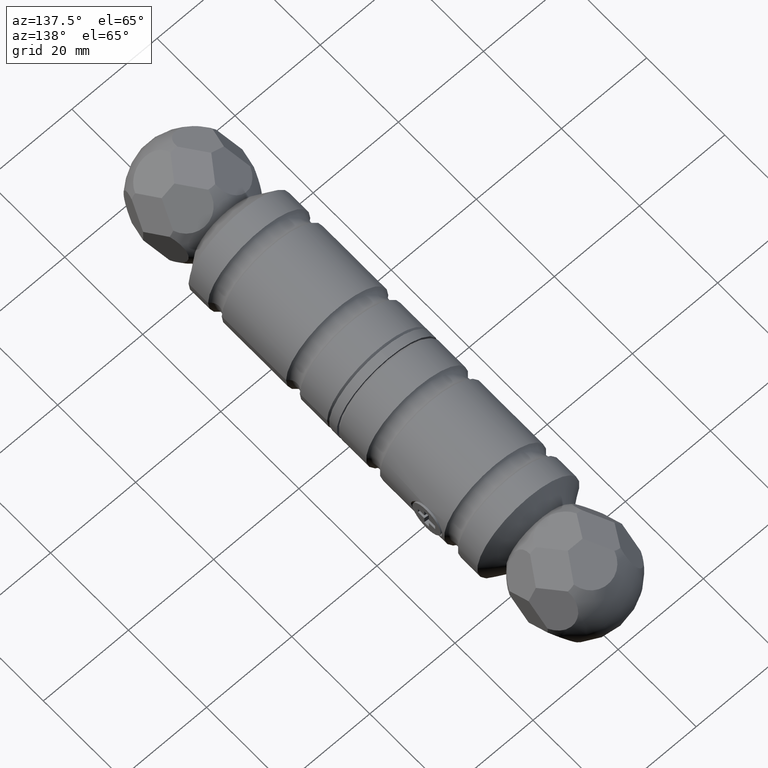
[diagram: clean part render]
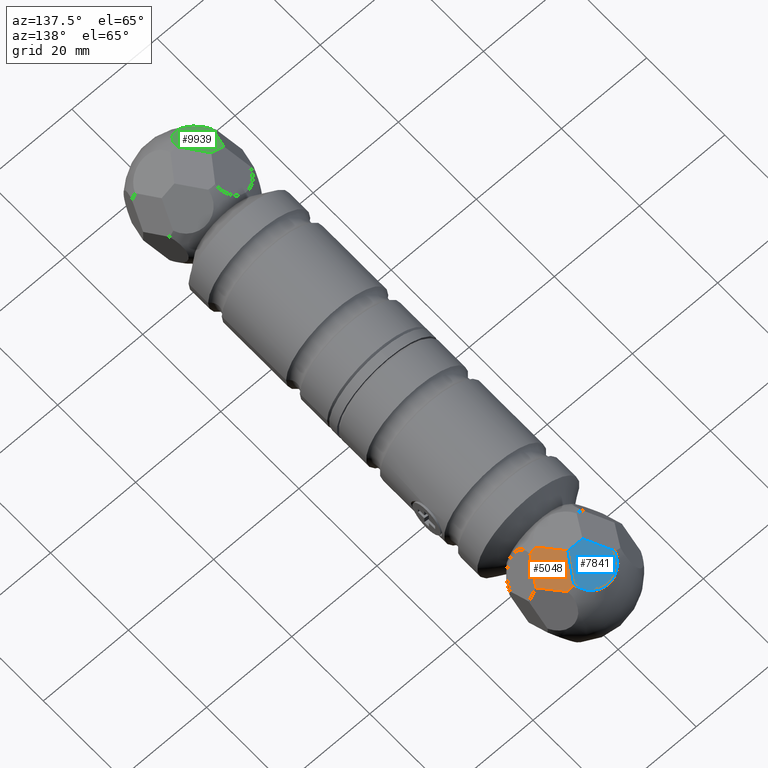
[diagram: same view with three faces highlighted in distinct colors, each labeled with its STEP entity id]
A machine part, auxiliary view with three faces highlighted in distinct colors.
Their STEP definitions:

[orange] entity #5048 — the highlighted planar face has unit normal (-0.5, -0, -0.866).
#91 = VERTEX_POINT ( 'NONE', #5121 ) ;
#273 = DIRECTION ( 'NONE',  ( -0.8660254037844417052, -0.000000000000000000, 0.4999999999999948930 ) ) ;
#384 = VERTEX_POINT ( 'NONE', #10099 ) ;
#799 = LINE ( 'NONE', #10627, #4416 ) ;
#951 = DIRECTION ( 'NONE',  ( 0.8660254037844415942, 0.000000000000000000, -0.4999999999999948375 ) ) ;
#999 = EDGE_CURVE ( 'NONE', #91, #1875, #799, .T. ) ;
#1102 = DIRECTION ( 'NONE',  ( -0.2942623679600525621, -0.8084792113654891699, -0.5096773720623462012 ) ) ;
#1119 = CIRCLE ( 'NONE', #2681, 4.908920451586054945 ) ;
#1185 = EDGE_LOOP ( 'NONE', ( #6904, #7780, #10842, #8720, #3027, #12714 ) ) ;
#1388 = VECTOR ( 'NONE', #5591, 1000.000000000000000 ) ;
#1641 = CARTESIAN_POINT ( 'NONE',  ( -9.890892980903208453, 52.84065305851196115, 4.768470824849223355 ) ) ;
#1866 = DIRECTION ( 'NONE',  ( -0.4999999999999948375, 0.000000000000000000, -0.8660254037844415942 ) ) ;
#1875 = VERTEX_POINT ( 'NONE', #8896 ) ;
#2681 = AXIS2_PLACEMENT_3D ( 'NONE', #5398, #7570, #4403 ) ;
#2770 = VERTEX_POINT ( 'NONE', #1641 ) ;
#3027 = ORIENTED_EDGE ( 'NONE', *, *, #999, .F. ) ;
#3209 = CARTESIAN_POINT ( 'NONE',  ( -8.064733691444677888, 50.06479510252208343, 7.931471496905316165 ) ) ;
#3464 = VECTOR ( 'NONE', #4243, 1000.000000000000000 ) ;
#3742 = VECTOR ( 'NONE', #1102, 1000.000000000000000 ) ;
#4066 = EDGE_CURVE ( 'NONE', #8406, #9555, #4861, .T. ) ;
#4243 = DIRECTION ( 'NONE',  ( -0.2942623679600499531, -0.8084792113654930557, -0.5096773720623415382 ) ) ;
#4277 = DIRECTION ( 'NONE',  ( -0.4999999999999949485, -1.413527469499999031E-15, -0.8660254037844415942 ) ) ;
#4403 = DIRECTION ( 'NONE',  ( -0.4999999999999949485, -2.827054938999998062E-15, -0.8660254037844415942 ) ) ;
#4416 = VECTOR ( 'NONE', #9835, 999.9999999999998863 ) ;
#4510 = AXIS2_PLACEMENT_3D ( 'NONE', #6326, #273, #4277 ) ;
#4652 = EDGE_CURVE ( 'NONE', #9555, #2770, #1119, .T. ) ;
#4861 = LINE ( 'NONE', #3209, #1388 ) ;
#5048 = ADVANCED_FACE ( 'NONE', ( #8703 ), #9106, .F. ) ;
#5121 = CARTESIAN_POINT ( 'NONE',  ( -9.890892980903242204, 43.15934694148806727, 4.768470824849205592 ) ) ;
#5398 = CARTESIAN_POINT ( 'NONE',  ( -9.482978171439610193, 48.00000000000000000, 5.474999999999963229 ) ) ;
#5565 = CARTESIAN_POINT ( 'NONE',  ( -7.313209734268021123, 48.00000000000000000, 9.233149173840525137 ) ) ;
#5591 = DIRECTION ( 'NONE',  ( -0.2942623679600511188, 0.8084792113654925005, -0.5096773720623418713 ) ) ;
#6326 = CARTESIAN_POINT ( 'NONE',  ( -9.482978171439610193, 48.00000000000000000, 5.474999999999963229 ) ) ;
#6547 = EDGE_CURVE ( 'NONE', #2770, #1875, #8534, .T. ) ;
#6904 = ORIENTED_EDGE ( 'NONE', *, *, #9476, .F. ) ;
#7570 = DIRECTION ( 'NONE',  ( -0.8660254037844417052, -0.000000000000000000, 0.4999999999999948930 ) ) ;
#7780 = ORIENTED_EDGE ( 'NONE', *, *, #4066, .T. ) ;
#8036 = CARTESIAN_POINT ( 'NONE',  ( -9.482978171439606641, 48.00000000000000000, 5.474999999999959677 ) ) ;
#8406 = VERTEX_POINT ( 'NONE', #5565 ) ;
#8534 = LINE ( 'NONE', #8971, #3742 ) ;
#8703 = FACE_OUTER_BOUND ( 'NONE', #1185, .T. ) ;
#8720 = ORIENTED_EDGE ( 'NONE', *, *, #6547, .T. ) ;
#8896 = CARTESIAN_POINT ( 'NONE',  ( -11.65274660861124012, 48.00000000000001421, 1.716850826159360466 ) ) ;
#8971 = CARTESIAN_POINT ( 'NONE',  ( -10.90122265143457447, 50.06479510252208343, 3.018528503094570770 ) ) ;
#9106 = PLANE ( 'NONE',  #11186 ) ;
#9322 = CARTESIAN_POINT ( 'NONE',  ( -8.064733691444681440, 45.93520489747793079, 7.931471496905312613 ) ) ;
#9476 = EDGE_CURVE ( 'NONE', #8406, #384, #10176, .T. ) ;
#9555 = VERTEX_POINT ( 'NONE', #9663 ) ;
#9663 = CARTESIAN_POINT ( 'NONE',  ( -9.075063361975960419, 52.84065305851193273, 6.181529175150788369 ) ) ;
#9835 = DIRECTION ( 'NONE',  ( -0.2942623679600533393, 0.8084792113654892809, -0.5096773720623456461 ) ) ;
#10099 = CARTESIAN_POINT ( 'NONE',  ( -9.075063361976003051, 43.15934694148808148, 6.181529175150775046 ) ) ;
#10176 = LINE ( 'NONE', #9322, #3464 ) ;
#10627 = CARTESIAN_POINT ( 'NONE',  ( -10.90122265143457092, 45.93520489747794500, 3.018528503094584092 ) ) ;
#10764 = CIRCLE ( 'NONE', #4510, 4.908920451586054945 ) ;
#10842 = ORIENTED_EDGE ( 'NONE', *, *, #4652, .T. ) ;
#11186 = AXIS2_PLACEMENT_3D ( 'NONE', #8036, #951, #1866 ) ;
#12435 = EDGE_CURVE ( 'NONE', #91, #384, #10764, .T. ) ;
#12714 = ORIENTED_EDGE ( 'NONE', *, *, #12435, .T. ) ;

[blue] entity #7841 — the highlighted planar face has unit normal (-0, 0.342, 0.9397).
#54 = ORIENTED_EDGE ( 'NONE', *, *, #231, .F. ) ;
#231 = EDGE_CURVE ( 'NONE', #1475, #12768, #11939, .T. ) ;
#1102 = DIRECTION ( 'NONE',  ( -0.2942623679600525621, -0.8084792113654891699, -0.5096773720623462012 ) ) ;
#1475 = VERTEX_POINT ( 'NONE', #2593 ) ;
#1541 = EDGE_CURVE ( 'NONE', #12768, #2770, #2042, .T. ) ;
#1641 = CARTESIAN_POINT ( 'NONE',  ( -9.890892980903208453, 52.84065305851196115, 4.768470824849223355 ) ) ;
#1875 = VERTEX_POINT ( 'NONE', #8896 ) ;
#2042 = CIRCLE ( 'NONE', #5472, 4.908920451586067379 ) ;
#2446 = DIRECTION ( 'NONE',  ( 0.3420201433256697121, 0.9396926207859080948, -3.081487911019577023E-33 ) ) ;
#2593 = CARTESIAN_POINT ( 'NONE',  ( -11.65274660861124012, 48.00000000000001421, -1.716850826159541654 ) ) ;
#2622 = DIRECTION ( 'NONE',  ( 0.2942623679600553932, 0.8084792113654997170, -0.5096773720623278825 ) ) ;
#2770 = VERTEX_POINT ( 'NONE', #1641 ) ;
#2935 = FACE_OUTER_BOUND ( 'NONE', #11072, .T. ) ;
#2961 = AXIS2_PLACEMENT_3D ( 'NONE', #3419, #12594, #2446 ) ;
#3006 = ORIENTED_EDGE ( 'NONE', *, *, #12111, .T. ) ;
#3419 = CARTESIAN_POINT ( 'NONE',  ( -10.28963419760569309, 51.74512056941608762, 1.805559322863033612E-31 ) ) ;
#3693 = DIRECTION ( 'NONE',  ( -0.3420201433256695456, -0.9396926207859080948, 3.081487911019576681E-33 ) ) ;
#3742 = VECTOR ( 'NONE', #1102, 1000.000000000000000 ) ;
#3827 = CARTESIAN_POINT ( 'NONE',  ( -10.28963419760569487, 51.74512056941608762, -1.203706215242022408E-32 ) ) ;
#4553 = LINE ( 'NONE', #13099, #7584 ) ;
#4894 = VECTOR ( 'NONE', #2622, 1000.000000000000000 ) ;
#5472 = AXIS2_PLACEMENT_3D ( 'NONE', #3827, #12040, #3693 ) ;
#6547 = EDGE_CURVE ( 'NONE', #2770, #1875, #8534, .T. ) ;
#7584 = VECTOR ( 'NONE', #8064, 1000.000000000000000 ) ;
#7841 = ADVANCED_FACE ( 'NONE', ( #2935 ), #11539, .T. ) ;
#8064 = DIRECTION ( 'NONE',  ( 0.000000000000000000, -4.565411374750538205E-34, 1.000000000000000000 ) ) ;
#8534 = LINE ( 'NONE', #8971, #3742 ) ;
#8896 = CARTESIAN_POINT ( 'NONE',  ( -11.65274660861124012, 48.00000000000001421, 1.716850826159360466 ) ) ;
#8971 = CARTESIAN_POINT ( 'NONE',  ( -10.90122265143457447, 50.06479510252208343, 3.018528503094570770 ) ) ;
#9090 = ORIENTED_EDGE ( 'NONE', *, *, #1541, .F. ) ;
#9660 = CARTESIAN_POINT ( 'NONE',  ( -10.90122265143456914, 50.06479510252208343, -3.018528503094713322 ) ) ;
#11072 = EDGE_LOOP ( 'NONE', ( #54, #3006, #12008, #9090 ) ) ;
#11539 = PLANE ( 'NONE',  #2961 ) ;
#11939 = LINE ( 'NONE', #9660, #4894 ) ;
#12008 = ORIENTED_EDGE ( 'NONE', *, *, #6547, .F. ) ;
#12014 = CARTESIAN_POINT ( 'NONE',  ( -9.890892980903219112, 52.84065305851190431, -4.768470824849194045 ) ) ;
#12040 = DIRECTION ( 'NONE',  ( 0.9396926207859082059, -0.3420201433256697676, -1.170965406187439618E-31 ) ) ;
#12111 = EDGE_CURVE ( 'NONE', #1475, #1875, #4553, .T. ) ;
#12594 = DIRECTION ( 'NONE',  ( -0.9396926207859080948, 0.3420201433256697121, 1.170965406187439399E-31 ) ) ;
#12768 = VERTEX_POINT ( 'NONE', #12014 ) ;
#13099 = CARTESIAN_POINT ( 'NONE',  ( -11.65274660861124012, 48.00000000000001421, 1.805559322863033612E-31 ) ) ;

[green] entity #9939 — the highlighted planar face has unit normal (-0.4698, -0.342, 0.8138).
#81 = ORIENTED_EDGE ( 'NONE', *, *, #7001, .F. ) ;
#605 = CIRCLE ( 'NONE', #606, 4.908920451586069156 ) ;
#606 = AXIS2_PLACEMENT_3D ( 'NONE', #1268, #3320, #10364 ) ;
#626 = AXIS2_PLACEMENT_3D ( 'NONE', #10672, #3334, #9698 ) ;
#656 = VECTOR ( 'NONE', #12960, 1000.000000000000114 ) ;
#709 = EDGE_CURVE ( 'NONE', #4673, #6542, #7927, .T. ) ;
#794 = FACE_OUTER_BOUND ( 'NONE', #11885, .T. ) ;
#1123 = ORIENTED_EDGE ( 'NONE', *, *, #6112, .F. ) ;
#1268 = CARTESIAN_POINT ( 'NONE',  ( -5.144817098802763944, 51.74512056941608051, -8.911084610775686699 ) ) ;
#1406 = LINE ( 'NONE', #11191, #11904 ) ;
#1417 = LINE ( 'NONE', #11865, #7760 ) ;
#3320 = DIRECTION ( 'NONE',  ( 0.4698463103929465534, -0.3420201433256697676, 0.8137976813493779105 ) ) ;
#3334 = DIRECTION ( 'NONE',  ( -0.4698463103929465534, 0.3420201433256696566, -0.8137976813493777994 ) ) ;
#4342 = ORIENTED_EDGE ( 'NONE', *, *, #11064, .T. ) ;
#4673 = VERTEX_POINT ( 'NONE', #11553 ) ;
#4809 = DIRECTION ( 'NONE',  ( -0.8660254037844432595, -1.454337538917727686E-16, 0.4999999999999918954 ) ) ;
#4911 = CARTESIAN_POINT ( 'NONE',  ( -0.8158296189271683208, 52.84065305851191852, -10.95000000000001350 ) ) ;
#5029 = CARTESIAN_POINT ( 'NONE',  ( -2.836488959989791336, 50.06479510252208343, -10.95000000000005258 ) ) ;
#6112 = EDGE_CURVE ( 'NONE', #9438, #8011, #1406, .T. ) ;
#6542 = VERTEX_POINT ( 'NONE', #4911 ) ;
#6549 = ORIENTED_EDGE ( 'NONE', *, *, #709, .F. ) ;
#7001 = EDGE_CURVE ( 'NONE', #6542, #9438, #605, .T. ) ;
#7760 = VECTOR ( 'NONE', #4809, 1000.000000000000114 ) ;
#7927 = LINE ( 'NONE', #5029, #656 ) ;
#8011 = VERTEX_POINT ( 'NONE', #9825 ) ;
#9438 = VERTEX_POINT ( 'NONE', #10389 ) ;
#9698 = DIRECTION ( 'NONE',  ( 0.1710100716628321083, 0.9396926207859080948, 0.2961981327260262420 ) ) ;
#9825 = CARTESIAN_POINT ( 'NONE',  ( -7.313209734267841711, 48.00000000000001421, -9.233149173840685009 ) ) ;
#9939 = ADVANCED_FACE ( 'NONE', ( #794 ), #10455, .T. ) ;
#10364 = DIRECTION ( 'NONE',  ( -0.8660254037844435926, -1.413527469499994889E-15, 0.4999999999999913958 ) ) ;
#10389 = CARTESIAN_POINT ( 'NONE',  ( -9.075063361975908904, 52.84065305851193983, -6.181529175150894062 ) ) ;
#10455 = PLANE ( 'NONE',  #626 ) ;
#10499 = DIRECTION ( 'NONE',  ( 0.2942623679600634423, -0.8084792113654891699, -0.5096773720623399839 ) ) ;
#10672 = CARTESIAN_POINT ( 'NONE',  ( -5.144817098802763056, 51.74512056941608762, -8.911084610775686699 ) ) ;
#11064 = EDGE_CURVE ( 'NONE', #4673, #8011, #1417, .T. ) ;
#11191 = CARTESIAN_POINT ( 'NONE',  ( -8.064733691444534003, 50.06479510252207632, -7.931471496905481366 ) ) ;
#11553 = CARTESIAN_POINT ( 'NONE',  ( -4.339536874343107975, 48.00000000000000711, -10.95000000000007745 ) ) ;
#11865 = CARTESIAN_POINT ( 'NONE',  ( -5.826373304305525025, 48.00000000000001421, -10.09157458692035192 ) ) ;
#11885 = EDGE_LOOP ( 'NONE', ( #6549, #4342, #1123, #81 ) ) ;
#11904 = VECTOR ( 'NONE', #10499, 1000.000000000000000 ) ;
#12960 = DIRECTION ( 'NONE',  ( 0.5885247359201015716, 0.8084792113654961643, 1.038896002684099694E-14 ) ) ;